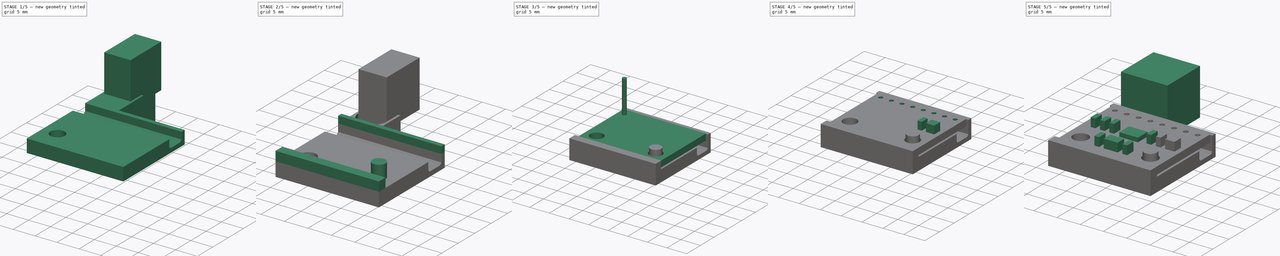
[diagram: build sequence overview — one tinted view per stage of 5, left to right]
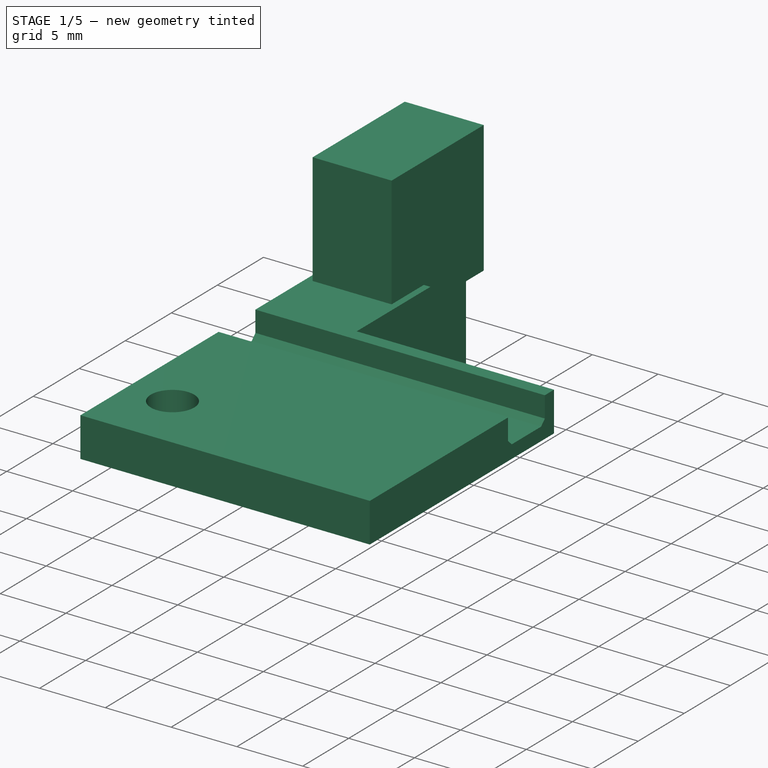
[diagram: stage 1 of 5 — iso view after this stage's code; geometry added in this stage tinted green]
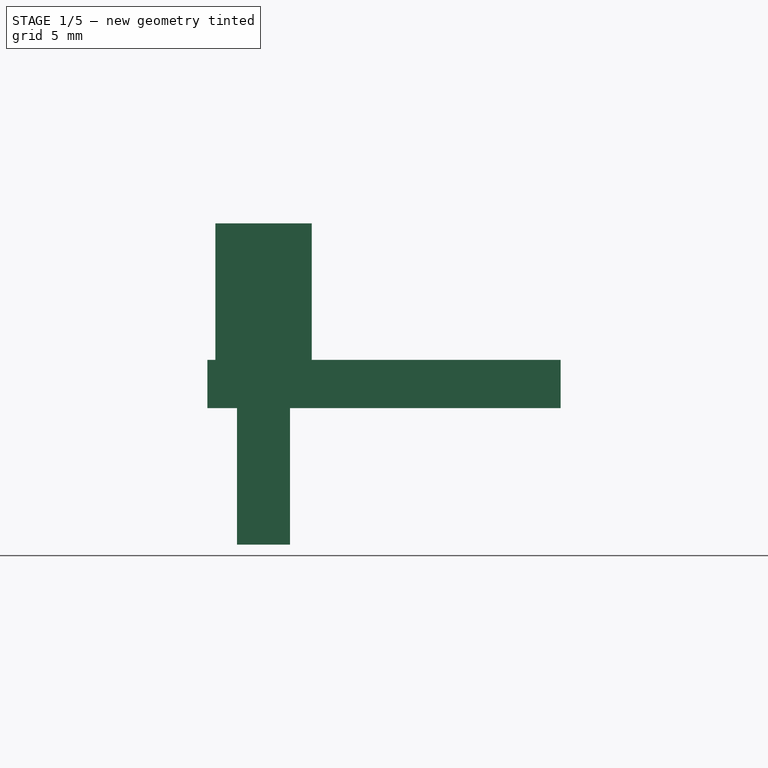
[diagram: stage 1 of 5 — front view after this stage's code; geometry added in this stage tinted green]
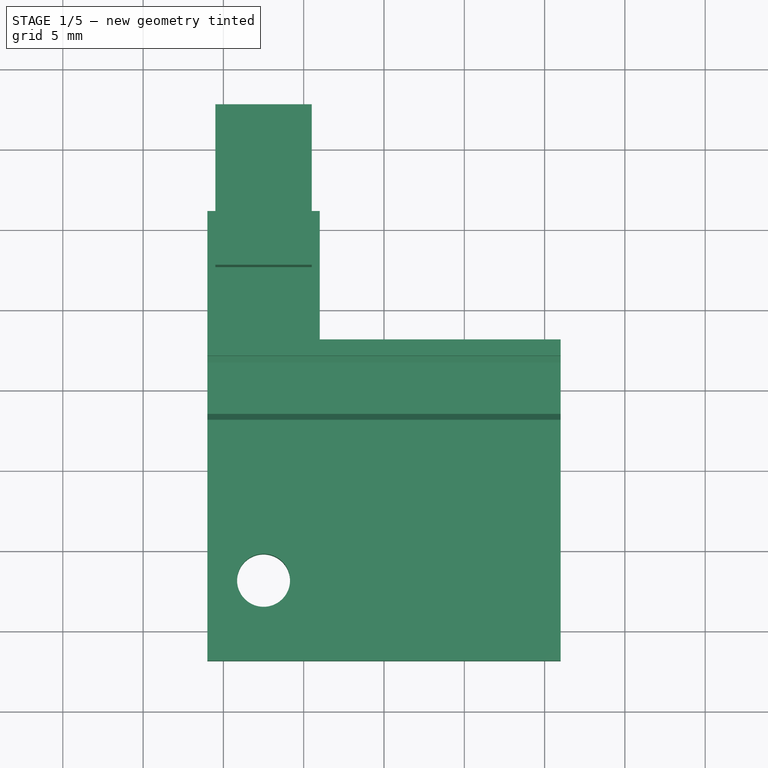
[diagram: stage 1 of 5 — top view after this stage's code; geometry added in this stage tinted green]
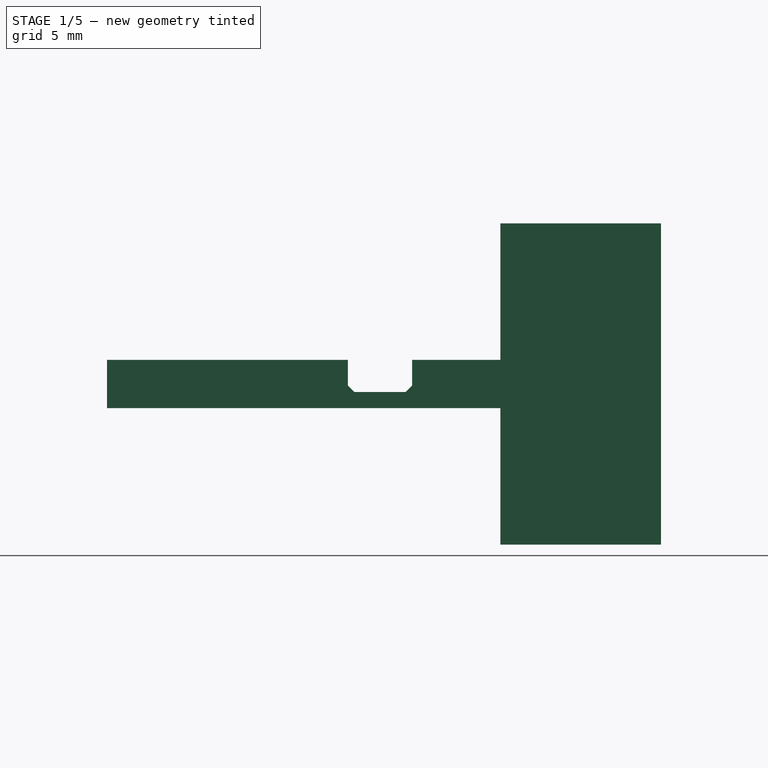
[diagram: stage 1 of 5 — right view after this stage's code; geometry added in this stage tinted green]
FCSTD DOCUMENT  (FreeCAD 0.19R24291 (Git))
Label: ADXL345-mounter
License: All rights reserved
LicenseURL: http://en.wikipedia.org/wiki/All_rights_reserved
objects: Part::Box×19, Part::Cylinder×14, Part::Cut×9, Part::MultiFuse×5, Part::Chamfer×3, PartDesign::FeatureBase×1, Sketcher::SketchObject×1, PartDesign::Pocket×1, PartDesign::Body×1
note: 55 computed .brp shape members not serialized (recipe doc carries the construction recipe); baked Part::Feature solids carry a one-line shape summary decoded from their .brp

FEATURE [Part::Box] Box011  label="Cube011"
  AttacherType = Attacher::AttachEngine3D
  Height = 3
  Length = 22
  Placement = pos=(-11,-2,-3) rot=(0,0,1;0rad)
  Width = 28
FEATURE [Part::Box] Box013  label="Cube013"
  AttacherType = Attacher::AttachEngine3D
  Height = 5
  Length = 22
  Placement = pos=(-11,13,-2) rot=(0,0,1;0rad)
  Width = 4
FEATURE [Part::Chamfer] Chamfer
  Base = -> Box013
  Edges = 2 edges r=0.4: [Edge9,Edge11]
FEATURE [Part::Box] Box014  label="Cube014"
  AttacherType = Attacher::AttachEngine3D
  Height = 10
  Length = 16
  Placement = pos=(-4,18,-4.5) rot=(0,0,1;0rad)
  Width = 12
FEATURE [Part::Cylinder] Cylinder013
  Angle = 360
  AttacherType = Attacher::AttachEngine3D
  Height = 10
  Placement = pos=(-7.5,3,-3.5) rot=(0,0,1;0rad)
  Radius = 1.65
FEATURE [Part::Cut] Cut002
  Base = -> Box011
  Tool = -> Chamfer
FEATURE [Part::Cut] Cut003
  Base = -> Cut002
  Tool = -> Box014
FEATURE [Part::Cut] Cut009
  Base = -> Cut003
  Tool = -> Cylinder013
FEATURE [Part::Box] Box017  label="Cube017"
  AttacherType = Attacher::AttachEngine3D
  Height = 10
  Length = 3.3
  Placement = pos=(-9.15,22.5,-11.5) rot=(0,0,1;0rad)
  Width = 10
  expr: Length = 1.65 * 2
FEATURE [Part::Box] Box018  label="Cube018"
  AttacherType = Attacher::AttachEngine3D
  Height = 10
  Length = 6
  Placement = pos=(-10.5,22.5,-1.5) rot=(0,0,1;0rad)
  Width = 10
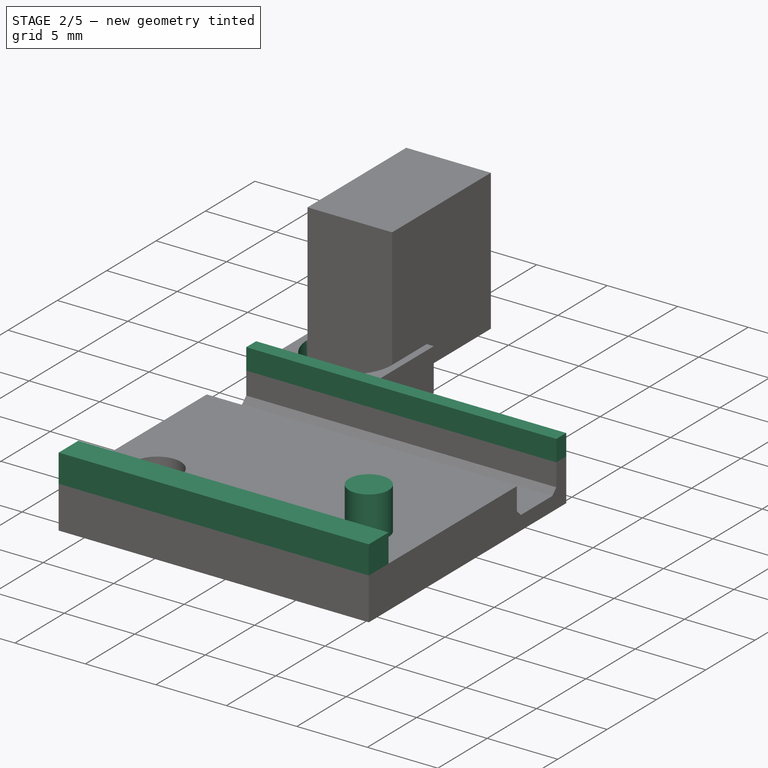
[diagram: stage 2 of 5 — iso view after this stage's code; geometry added in this stage tinted green]
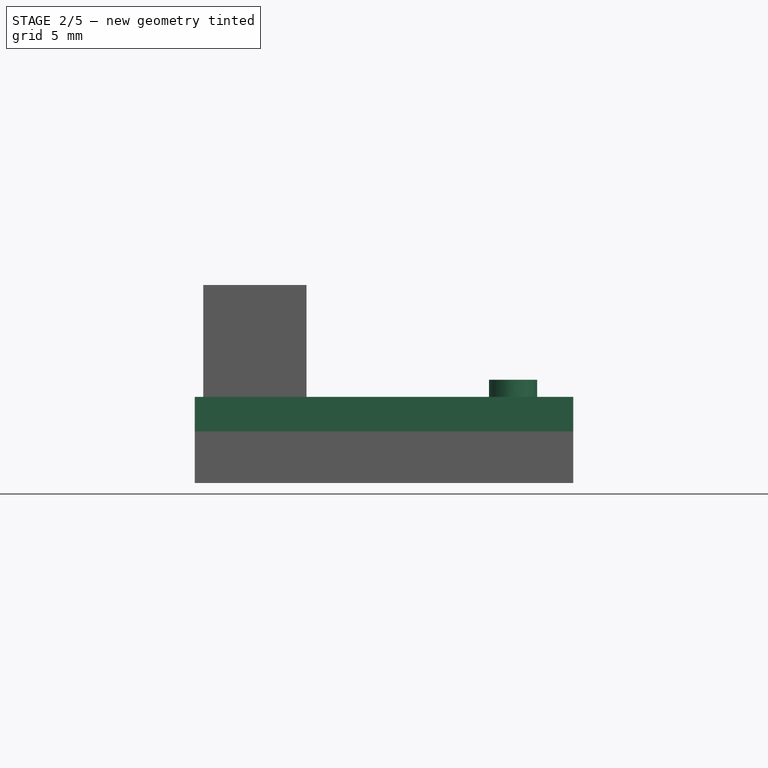
[diagram: stage 2 of 5 — front view after this stage's code; geometry added in this stage tinted green]
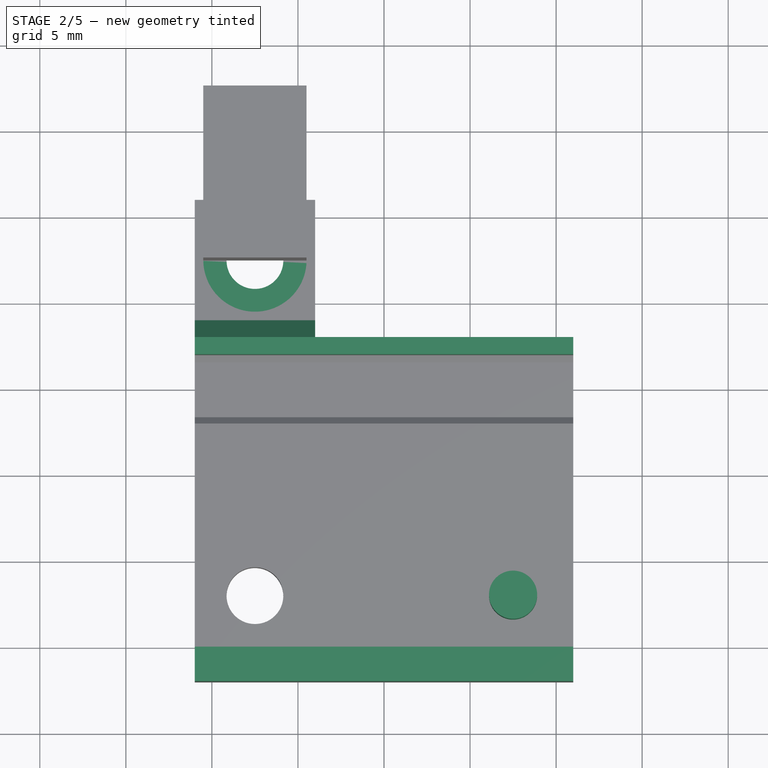
[diagram: stage 2 of 5 — top view after this stage's code; geometry added in this stage tinted green]
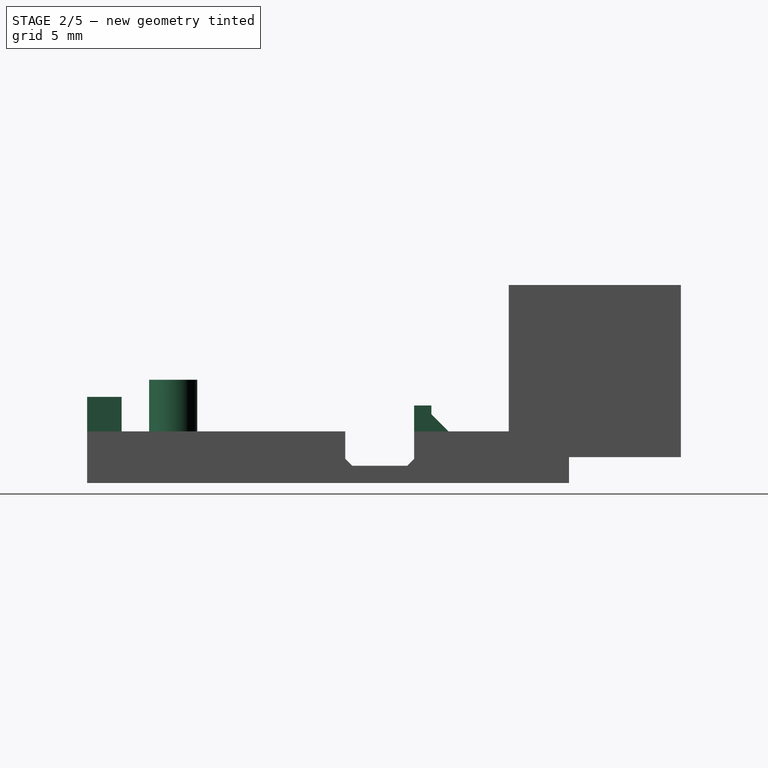
[diagram: stage 2 of 5 — right view after this stage's code; geometry added in this stage tinted green]
FEATURE [Part::Cylinder] Cylinder011
  Angle = 360
  AttacherType = Attacher::AttachEngine3D
  Height = 10
  Placement = pos=(-7.5,22.5,-1.5) rot=(0,0,1;0rad)
  Radius = 3
FEATURE [Part::Cylinder] Cylinder012
  Angle = 360
  AttacherType = Attacher::AttachEngine3D
  Height = 3
  Placement = pos=(7.5,3,0) rot=(0,0,1;0rad)
  Radius = 1.4
FEATURE [Part::Box] Box012  label="Cube012"
  AttacherType = Attacher::AttachEngine3D
  Height = 5
  Length = 22
  Placement = pos=(-11,-2,-3) rot=(0,0,1;0rad)
  Width = 2
FEATURE [Part::Cylinder] Cylinder014
  Angle = 360
  AttacherType = Attacher::AttachEngine3D
  Height = 10
  Placement = pos=(-7.5,22.5,-6.5) rot=(0,0,1;0rad)
  Radius = 1.65
FEATURE [Part::Box] Box015  label="Cube015"
  AttacherType = Attacher::AttachEngine3D
  Height = 1.5
  Length = 22
  Placement = pos=(-11,17,0) rot=(0,0,1;0rad)
  Width = 1
FEATURE [Part::MultiFuse] Fusion002008
  Shapes = -> [Cut009,Cylinder012]
FEATURE [Part::Cut] Cut010
  Base = -> Fusion002008
  Tool = -> Cylinder011
FEATURE [Part::Cut] Cut011
  Base = -> Cut010
  Tool = -> Cylinder014
FEATURE [Part::MultiFuse] Fusion002009
  Shapes = -> [Box015,Cut011,Box012]
FEATURE [Part::Chamfer] Chamfer001
  Base = -> Fusion002009
  Edges = 1 edges r=1: [Edge10]
FEATURE [Part::Cut] Cut012
  Base = -> Chamfer001
  Tool = -> Box017
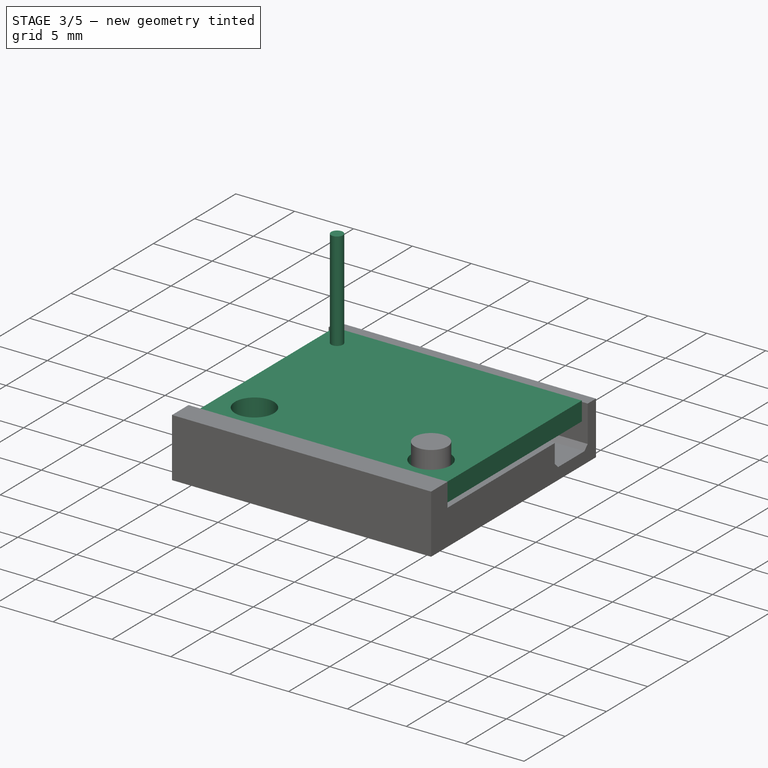
[diagram: stage 3 of 5 — iso view after this stage's code; geometry added in this stage tinted green]
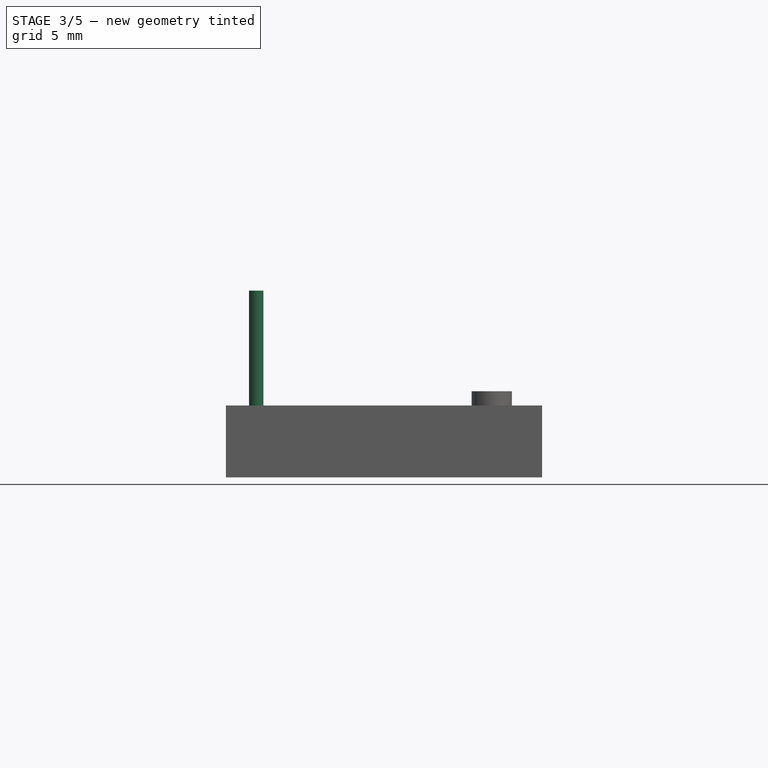
[diagram: stage 3 of 5 — front view after this stage's code; geometry added in this stage tinted green]
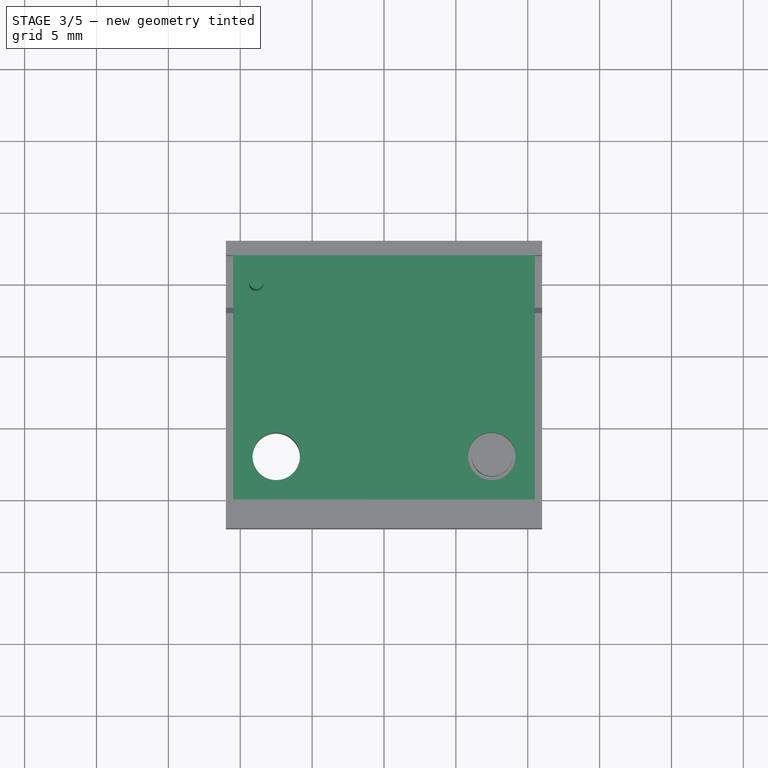
[diagram: stage 3 of 5 — top view after this stage's code; geometry added in this stage tinted green]
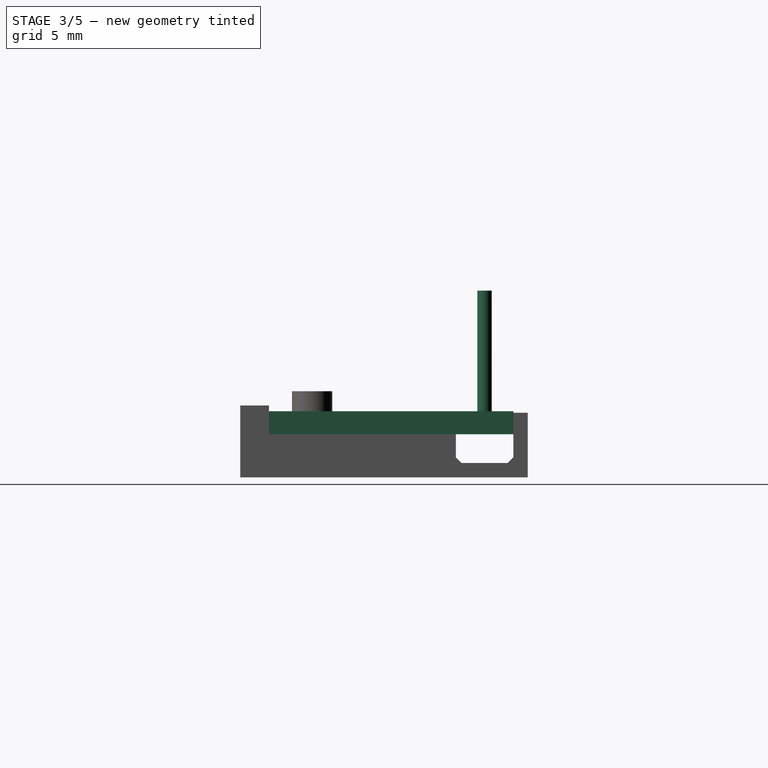
[diagram: stage 3 of 5 — right view after this stage's code; geometry added in this stage tinted green]
FEATURE [Part::Box] Box  label="Cube"
  AttacherType = Attacher::AttachEngine3D
  Height = 1.6
  Length = 21
  Placement = pos=(-10.5,0,0) rot=(0,0,1;0rad)
  Width = 17
FEATURE [Part::Cylinder] Cylinder
  Angle = 360
  AttacherType = Attacher::AttachEngine3D
  Height = 10
  Placement = pos=(-7.5,2.5,0) rot=(0,0,1;0rad)
  Radius = 1.65
FEATURE [Part::Cylinder] Cylinder001
  Angle = 360
  AttacherType = Attacher::AttachEngine3D
  Height = 10
  Placement = pos=(7.5,2.5,0) rot=(0,0,1;0rad)
  Radius = 1.65
FEATURE [Part::MultiFuse] Fusion
  Placement = pos=(0,0.5,0) rot=(0,0,1;0rad)
  Shapes = -> [Cylinder,Cylinder001]
FEATURE [Part::Cylinder] Cylinder009
  Angle = 360
  AttacherType = Attacher::AttachEngine3D
  Height = 10
  Placement = pos=(-8.89,15,0) rot=(0,0,1;0rad)
  Radius = 0.5
FEATURE [Part::Cut] Cut
  Base = -> Box
  Tool = -> Fusion
FEATURE [Part::Cut] Cut013
  Base = -> Cut012
  Tool = -> Box018
FEATURE [Part::Chamfer] Chamfer002  label="sensor-r1"
  Base = -> Cut013
  Edges = 4 edges r=0.4: [Edge41,Edge42,Edge68,Edge70]
FEATURE [PartDesign::FeatureBase] BaseFeature
  BaseFeature = -> Chamfer002
FEATURE [Sketcher::SketchObject] Sketch
  ExternalGeometry = -> [BaseFeature]
  FullyConstrained = true
  MapMode = 5
  Placement = pos=(0,0,1.5) rot=(0,0,1;0rad)
  Support = -> [BaseFeature]
  sketch-geometry (4):
    g0: LineSegment StartX=-4 StartY=26 StartZ=0 EndX=-11 EndY=26 EndZ=0
    g1: LineSegment StartX=-11 StartY=26 StartZ=0 EndX=-11 EndY=18 EndZ=0
    g2: LineSegment StartX=-11 StartY=18 StartZ=0 EndX=-4 EndY=18 EndZ=0
    g3: LineSegment StartX=-4 StartY=18 StartZ=0 EndX=-4 EndY=26 EndZ=0
  constraints (10):
    c: Coincident(g0,g1)
    c: Coincident(g1,g2)
    c: Coincident(g2,g3)
    c: Coincident(g3,g0)
    c: Horizontal(g0)
    c: Horizontal(g2)
    c: Vertical(g1)
    c: Vertical(g3)
    c: Coincident(g0,g-5)
    c: Coincident(g1,g-4)
FEATURE [PartDesign::Pocket] Pocket
  BaseFeature = -> BaseFeature
  Length = 5
  Length2 = 100
  Profile = -> Sketch
  Type = 1
FEATURE [PartDesign::Body] Body
  BaseFeature = -> Chamfer002
  Group = -> [BaseFeature,Sketch,Pocket]
  Origin = -> Origin
  Tip = -> Pocket
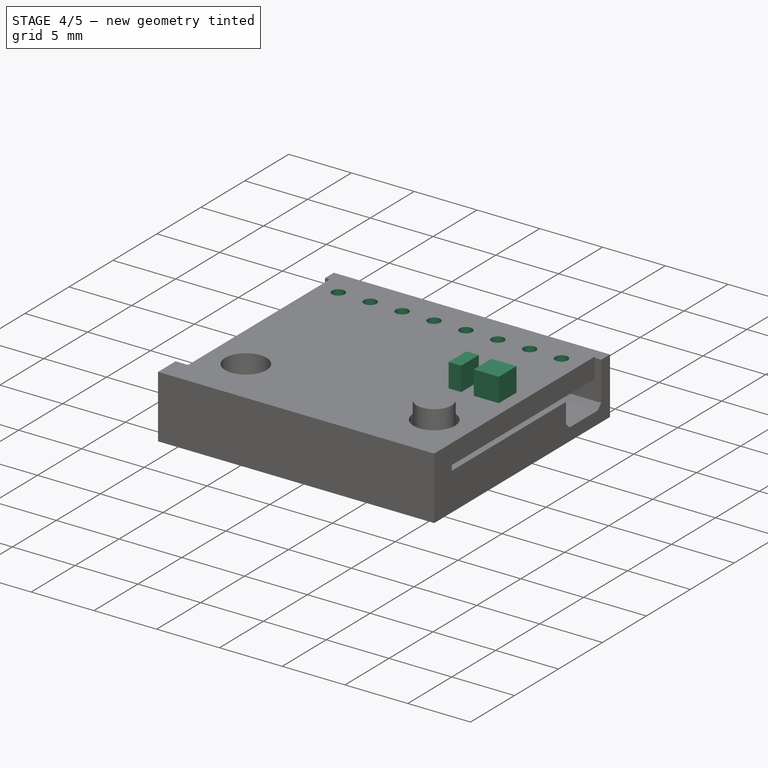
[diagram: stage 4 of 5 — iso view after this stage's code; geometry added in this stage tinted green]
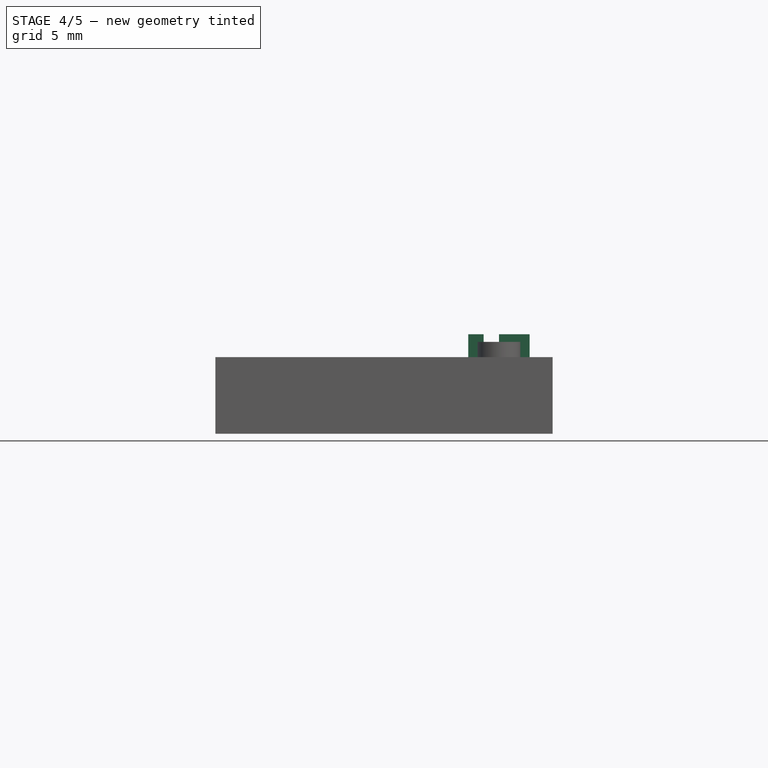
[diagram: stage 4 of 5 — front view after this stage's code; geometry added in this stage tinted green]
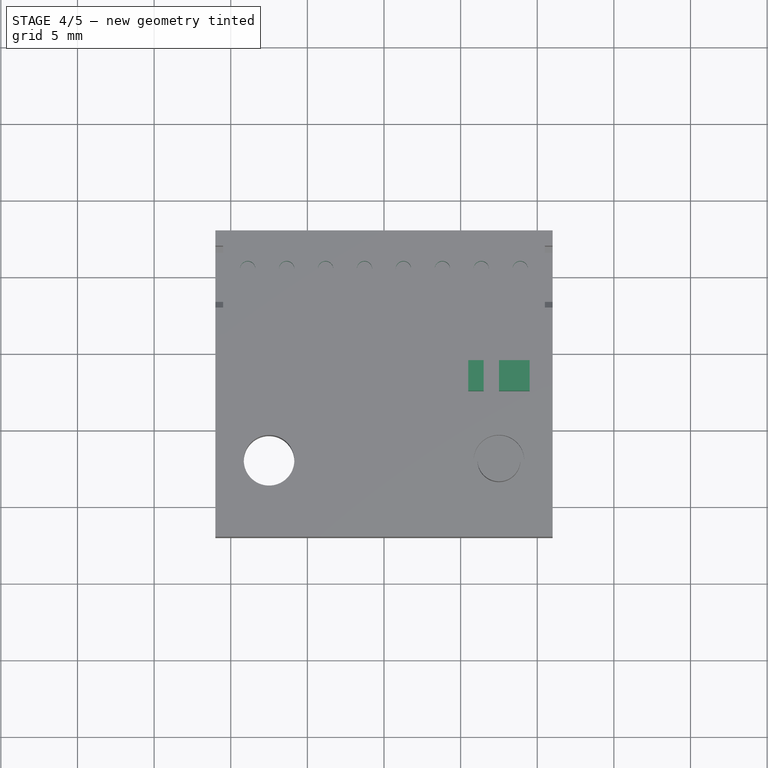
[diagram: stage 4 of 5 — top view after this stage's code; geometry added in this stage tinted green]
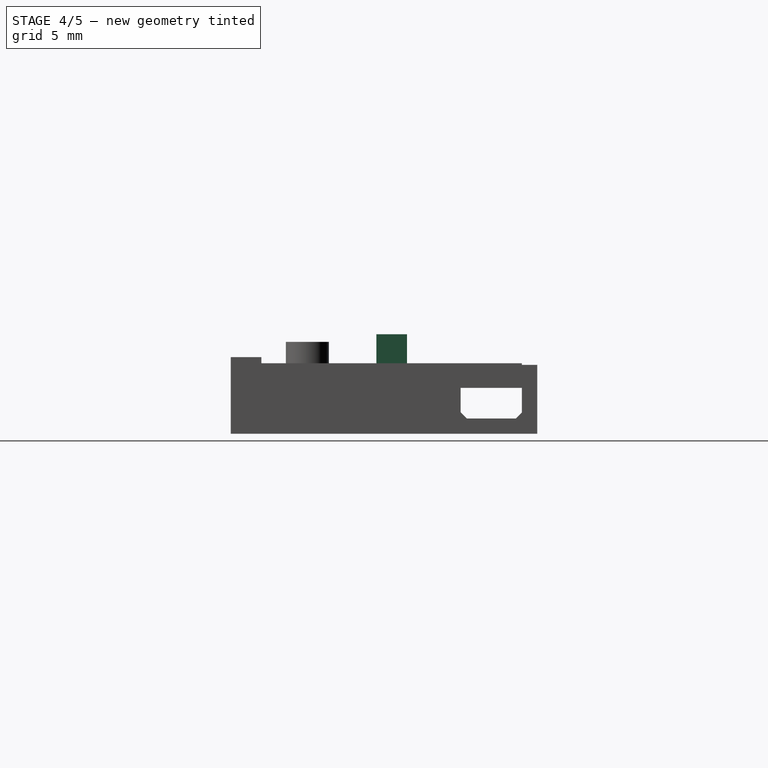
[diagram: stage 4 of 5 — right view after this stage's code; geometry added in this stage tinted green]
FEATURE [Part::Cylinder] Cylinder002
  Angle = 360
  AttacherType = Attacher::AttachEngine3D
  Height = 10
  Placement = pos=(-1.27,15,0) rot=(0,0,1;0rad)
  Radius = 0.5
FEATURE [Part::Cylinder] Cylinder003
  Angle = 360
  AttacherType = Attacher::AttachEngine3D
  Height = 10
  Placement = pos=(1.27,15,0) rot=(0,0,1;0rad)
  Radius = 0.5
FEATURE [Part::Cylinder] Cylinder004
  Angle = 360
  AttacherType = Attacher::AttachEngine3D
  Height = 10
  Placement = pos=(3.81,15,0) rot=(0,0,1;0rad)
  Radius = 0.5
FEATURE [Part::Cylinder] Cylinder005
  Angle = 360
  AttacherType = Attacher::AttachEngine3D
  Height = 10
  Placement = pos=(-3.81,15,0) rot=(0,0,1;0rad)
  Radius = 0.5
FEATURE [Part::Cylinder] Cylinder006
  Angle = 360
  AttacherType = Attacher::AttachEngine3D
  Height = 10
  Placement = pos=(-6.35,15,0) rot=(0,0,1;0rad)
  Radius = 0.5
FEATURE [Part::Cylinder] Cylinder007
  Angle = 360
  AttacherType = Attacher::AttachEngine3D
  Height = 10
  Placement = pos=(6.35,15,0) rot=(0,0,1;0rad)
  Radius = 0.5
FEATURE [Part::Cylinder] Cylinder008
  Angle = 360
  AttacherType = Attacher::AttachEngine3D
  Height = 10
  Placement = pos=(8.89,15,0) rot=(0,0,1;0rad)
  Radius = 0.5
FEATURE [Part::MultiFuse] Fusion001
  Placement = pos=(0,0.5,0) rot=(0,0,1;0rad)
  Shapes = -> [Cylinder009,Cylinder007,Cylinder008,Cylinder006,Cylinder005,Cylinder004,Cylinder003,Cylinder002]
FEATURE [Part::Box] Box009  label="Cube009"
  AttacherType = Attacher::AttachEngine3D
  Height = 3.5
  Length = 1
  Placement = pos=(5.5,7.5,0) rot=(0,0,1;0rad)
  Width = 2
FEATURE [Part::Box] Box010  label="Cube010"
  AttacherType = Attacher::AttachEngine3D
  Height = 3.5
  Length = 2
  Placement = pos=(7.5,7.5,0) rot=(0,0,1;0rad)
  Width = 2
FEATURE [Part::Cut] Cut008
  Base = -> Cut
  Tool = -> Fusion001
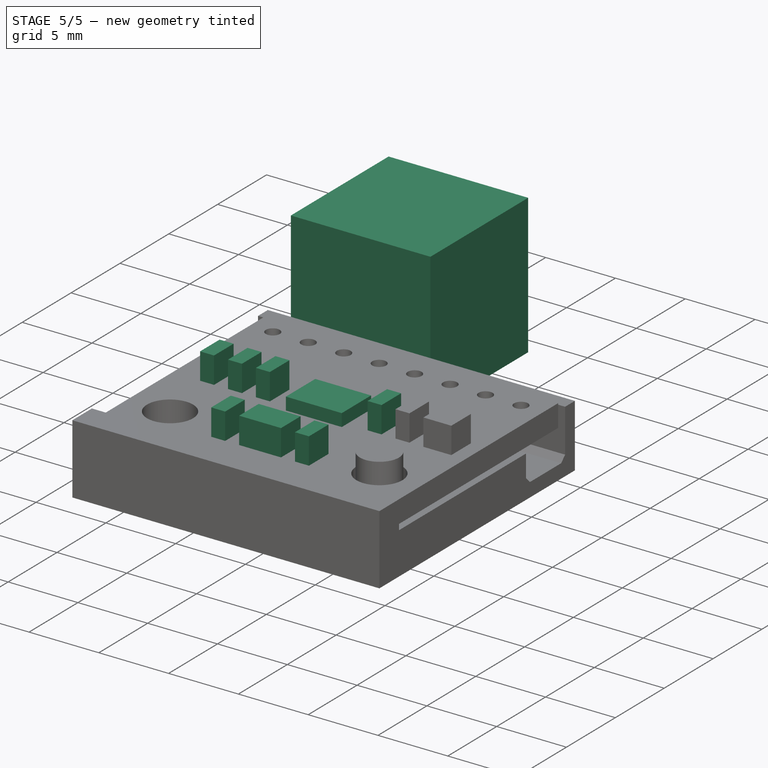
[diagram: stage 5 of 5 — iso view after this stage's code; geometry added in this stage tinted green]
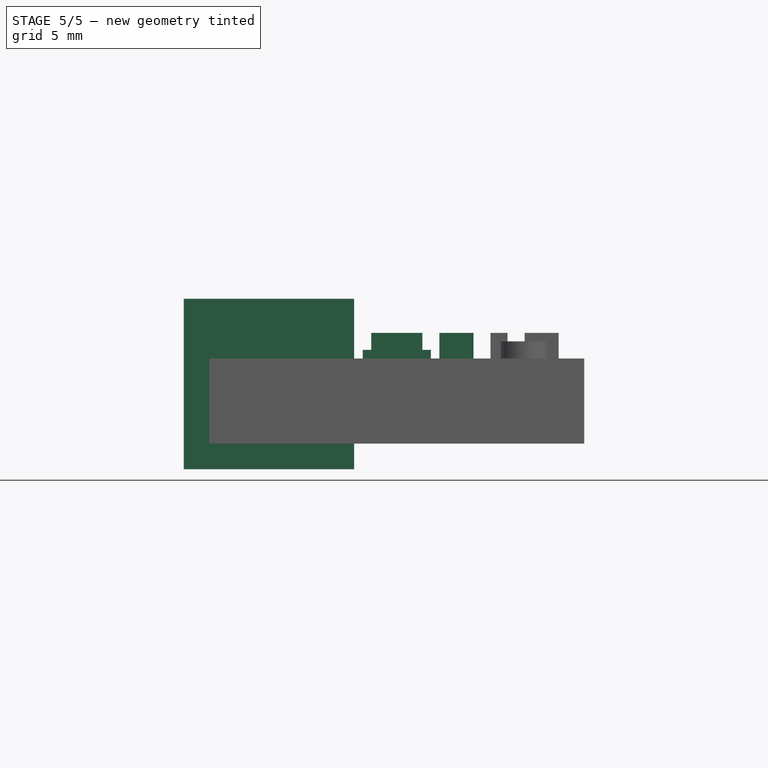
[diagram: stage 5 of 5 — front view after this stage's code; geometry added in this stage tinted green]
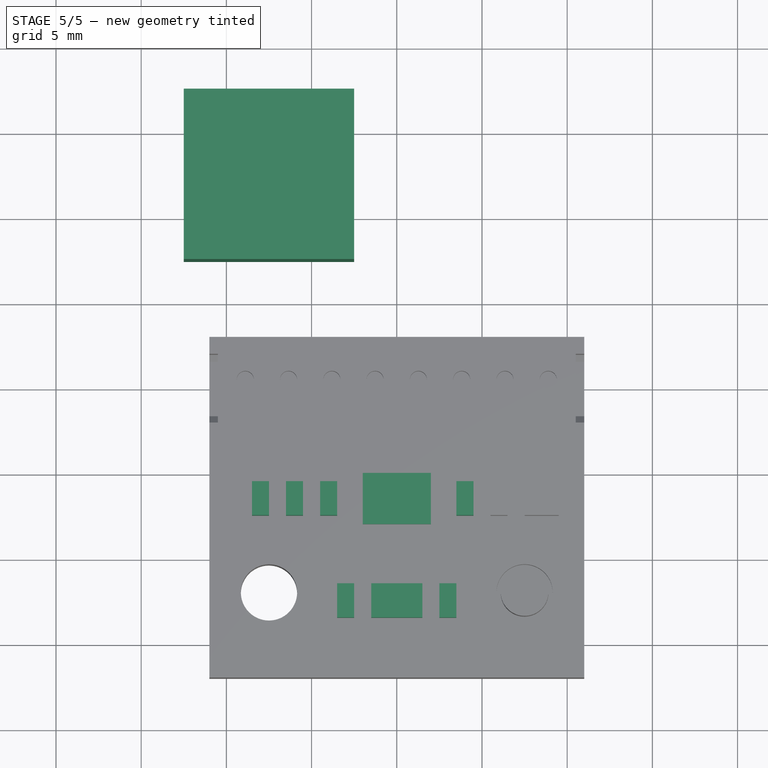
[diagram: stage 5 of 5 — top view after this stage's code; geometry added in this stage tinted green]
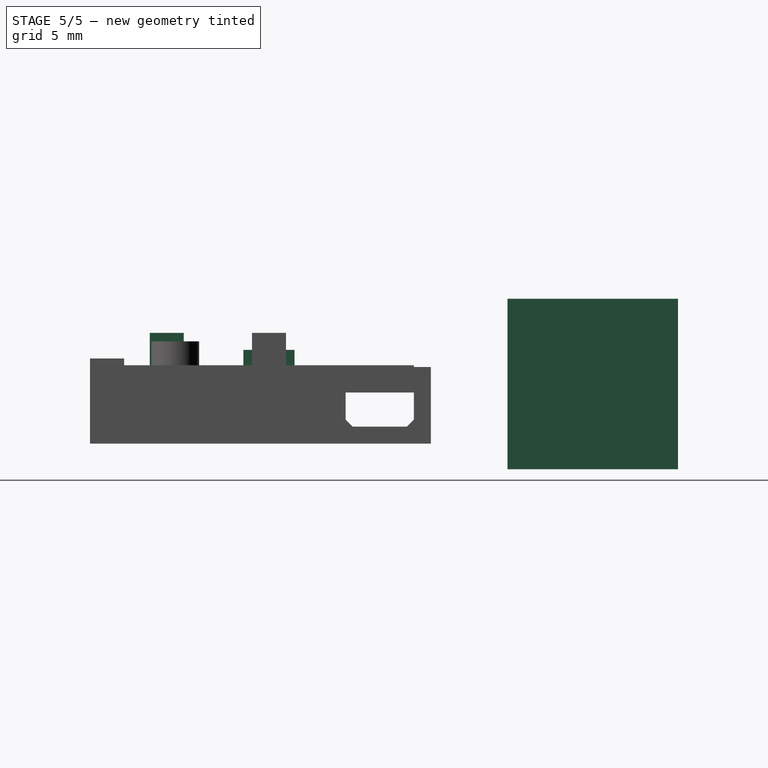
[diagram: stage 5 of 5 — right view after this stage's code; geometry added in this stage tinted green]
FEATURE [Part::Box] Box001  label="Cube001"
  AttacherType = Attacher::AttachEngine3D
  Height = 2.5
  Length = 4
  Placement = pos=(-2,7,0) rot=(0,0,1;0rad)
  Width = 3
FEATURE [Part::Box] Box002  label="Cube002"
  AttacherType = Attacher::AttachEngine3D
  Height = 3.5
  Length = 3
  Placement = pos=(-1.5,1.5,0) rot=(0,0,1;0rad)
  Width = 2
FEATURE [Part::Box] Box003  label="Cube003"
  AttacherType = Attacher::AttachEngine3D
  Height = 3.5
  Length = 1
  Placement = pos=(-3.5,1.5,0) rot=(0,0,1;0rad)
  Width = 2
FEATURE [Part::Box] Box004  label="Cube004"
  AttacherType = Attacher::AttachEngine3D
  Height = 3.5
  Length = 1
  Placement = pos=(2.5,1.5,0) rot=(0,0,1;0rad)
  Width = 2
FEATURE [Part::Box] Box005  label="Cube005"
  AttacherType = Attacher::AttachEngine3D
  Height = 3.5
  Length = 1
  Placement = pos=(-4.5,7.5,0) rot=(0,0,1;0rad)
  Width = 2
FEATURE [Part::Box] Box006  label="Cube006"
  AttacherType = Attacher::AttachEngine3D
  Height = 3.5
  Length = 1
  Placement = pos=(-6.5,7.5,0) rot=(0,0,1;0rad)
  Width = 2
FEATURE [Part::Box] Box007  label="Cube007"
  AttacherType = Attacher::AttachEngine3D
  Height = 3.5
  Length = 1
  Placement = pos=(-8.5,7.5,0) rot=(0,0,1;0rad)
  Width = 2
FEATURE [Part::Box] Box008  label="Cube008"
  AttacherType = Attacher::AttachEngine3D
  Height = 3.5
  Length = 1
  Placement = pos=(3.5,7.5,0) rot=(0,0,1;0rad)
  Width = 2
FEATURE [Part::Box] Box016  label="Cube016"
  AttacherType = Attacher::AttachEngine3D
  Height = 10
  Length = 10
  Placement = pos=(-12.5,22.5,-4.5) rot=(0,0,1;0rad)
  Width = 10
FEATURE [Part::MultiFuse] Fusion002007  label="ADXL345"
  Shapes = -> [Cut008,Box001,Box002,Box003,Box004,Box005,Box006,Box007,Box008,Box009,Box010]
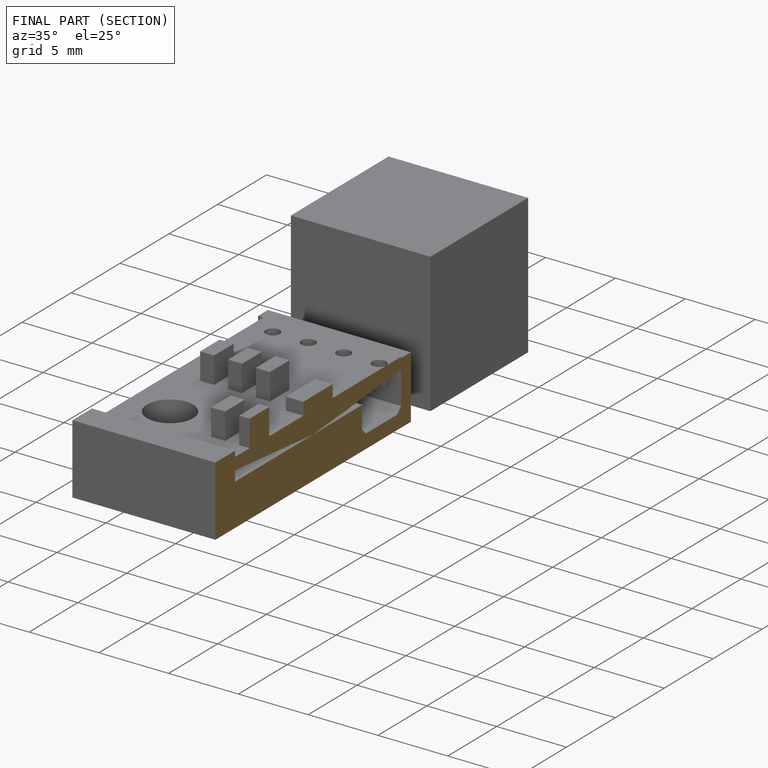
[diagram: finished part — half-section view (interior)]
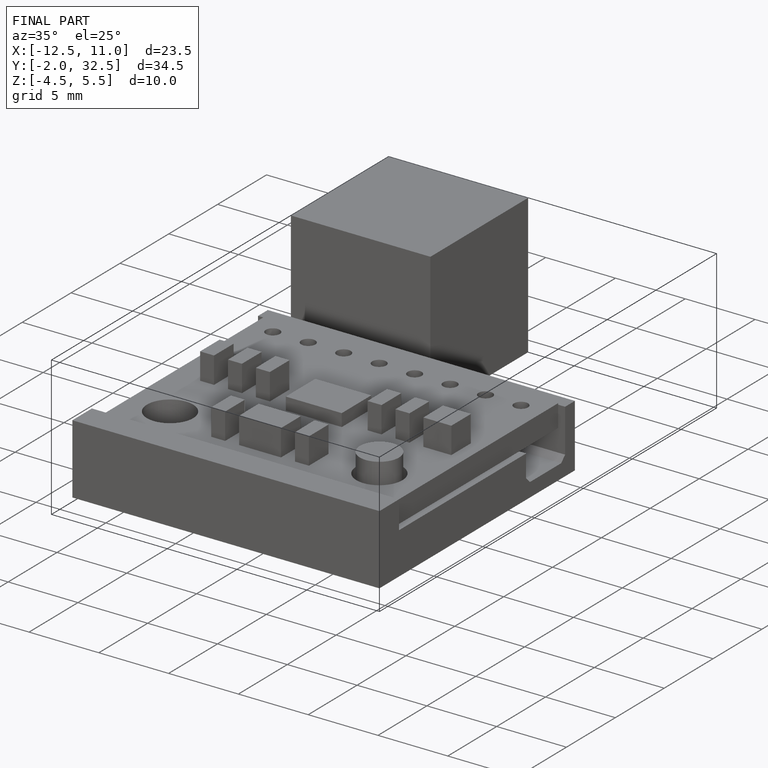
[diagram: finished part — iso view with bounding-box wireframe]
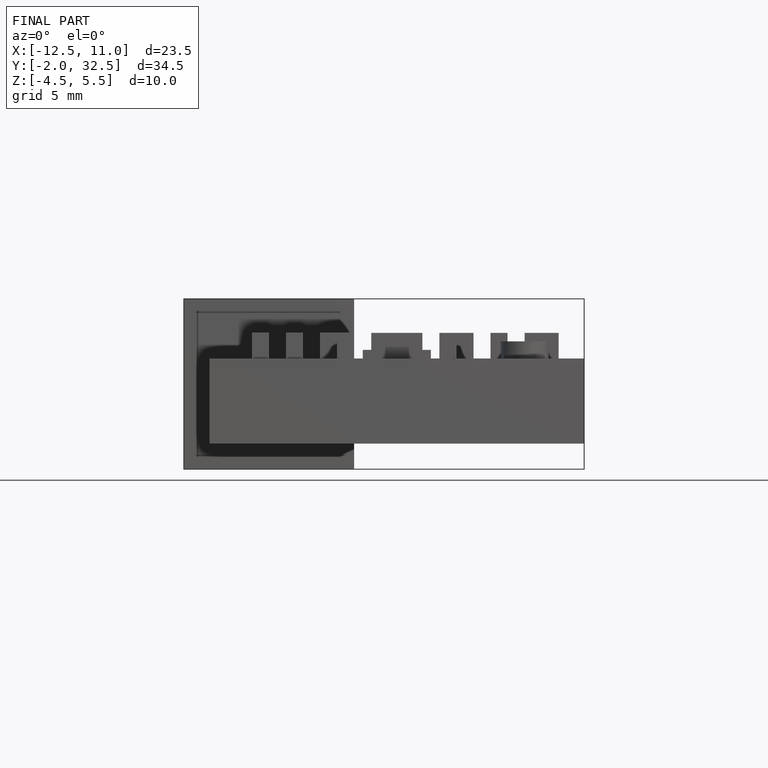
[diagram: finished part — front view with bounding-box wireframe]
